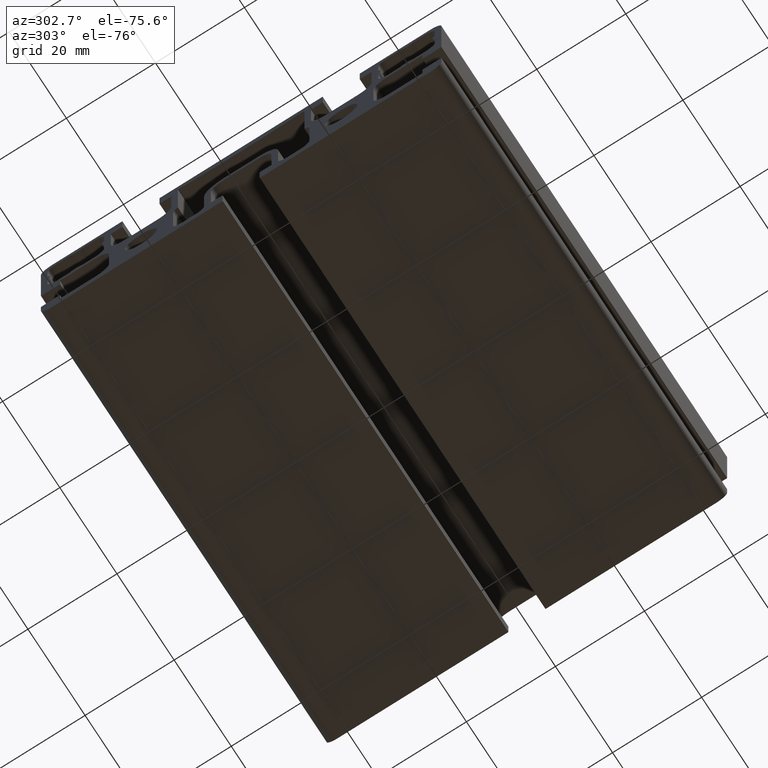
[diagram: clean part render]
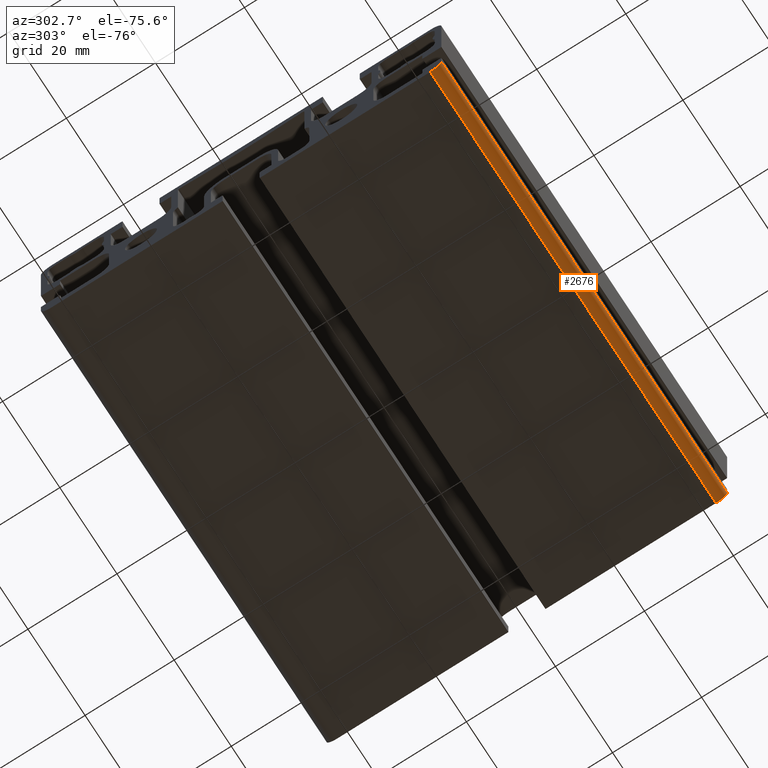
[diagram: same view with one face highlighted and labeled with its STEP entity id]
A machine part, auxiliary view. The second image highlights one B-rep face of the part: STEP entity #2676.
In plain terms, the highlighted cylindrical surface (edge-blend (fillet) strip) has radius 2.5 mm, axis along (1, 0, 0).
Its self-contained STEP definition (entity closure, byte-faithful):
#217=FACE_OUTER_BOUND('',#356,.T.);
#356=EDGE_LOOP('',(#2312,#2313,#2314,#2315));
#461=CIRCLE('',#2851,2.5);
#495=CIRCLE('',#2952,2.5);
#751=LINE('',#4508,#1021);
#752=LINE('',#4512,#1022);
#1021=VECTOR('',#3706,10.);
#1022=VECTOR('',#3711,10.);
#1215=VERTEX_POINT('',#4220);
#1216=VERTEX_POINT('',#4222);
#1292=VERTEX_POINT('',#4506);
#1293=VERTEX_POINT('',#4510);
#1533=EDGE_CURVE('',#1215,#1216,#461,.T.);
#1676=EDGE_CURVE('',#1292,#1215,#751,.T.);
#1677=EDGE_CURVE('',#1293,#1292,#495,.T.);
#1678=EDGE_CURVE('',#1293,#1216,#752,.T.);
#2312=ORIENTED_EDGE('',*,*,#1676,.F.);
#2313=ORIENTED_EDGE('',*,*,#1677,.F.);
#2314=ORIENTED_EDGE('',*,*,#1678,.T.);
#2315=ORIENTED_EDGE('',*,*,#1533,.F.);
#2550=CYLINDRICAL_SURFACE('',#2951,2.5);
#2676=ADVANCED_FACE('',(#217),#2550,.T.);
#2851=AXIS2_PLACEMENT_3D('',#4223,#3397,#3398);
#2951=AXIS2_PLACEMENT_3D('',#4509,#3707,#3708);
#2952=AXIS2_PLACEMENT_3D('',#4511,#3709,#3710);
#3397=DIRECTION('center_axis',(-1.,0.,0.));
#3398=DIRECTION('ref_axis',(0.,1.,1.77635683940025E-15));
#3706=DIRECTION('',(-1.,0.,0.));
#3707=DIRECTION('center_axis',(1.,0.,0.));
#3708=DIRECTION('ref_axis',(0.,1.,1.77635683940025E-15));
#3709=DIRECTION('center_axis',(1.,0.,0.));
#3710=DIRECTION('ref_axis',(0.,1.,1.77635683940025E-15));
#3711=DIRECTION('',(-1.,0.,0.));
#4220=CARTESIAN_POINT('',(-50.,-42.5,-16.));
#4222=CARTESIAN_POINT('',(-50.,-45.,-13.5));
#4223=CARTESIAN_POINT('Origin',(-50.,-42.5,-13.5));
#4506=CARTESIAN_POINT('',(50.,-42.5,-16.));
#4508=CARTESIAN_POINT('',(0.,-42.5,-16.));
#4509=CARTESIAN_POINT('Origin',(0.,-42.5,-13.5));
#4510=CARTESIAN_POINT('',(50.,-45.,-13.5));
#4511=CARTESIAN_POINT('Origin',(50.,-42.5,-13.5));
#4512=CARTESIAN_POINT('',(0.,-45.,-13.5));